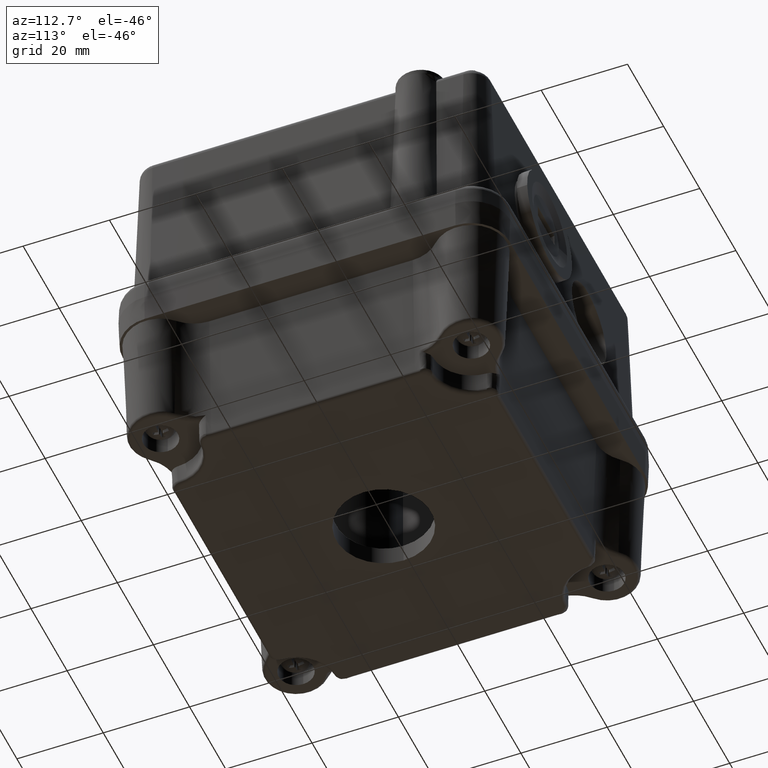
[diagram: clean part render]
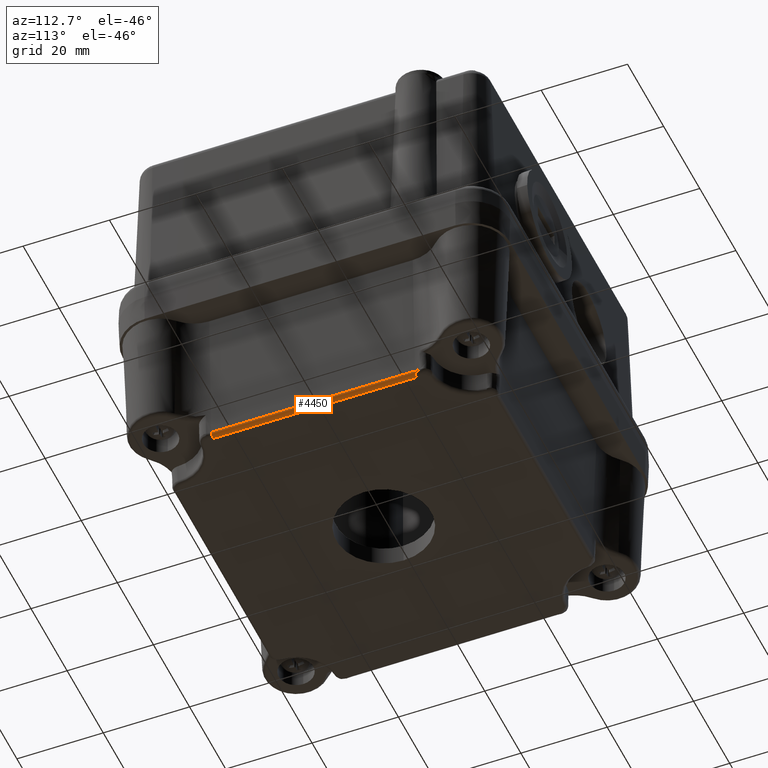
[diagram: same view with one face highlighted and labeled with its STEP entity id]
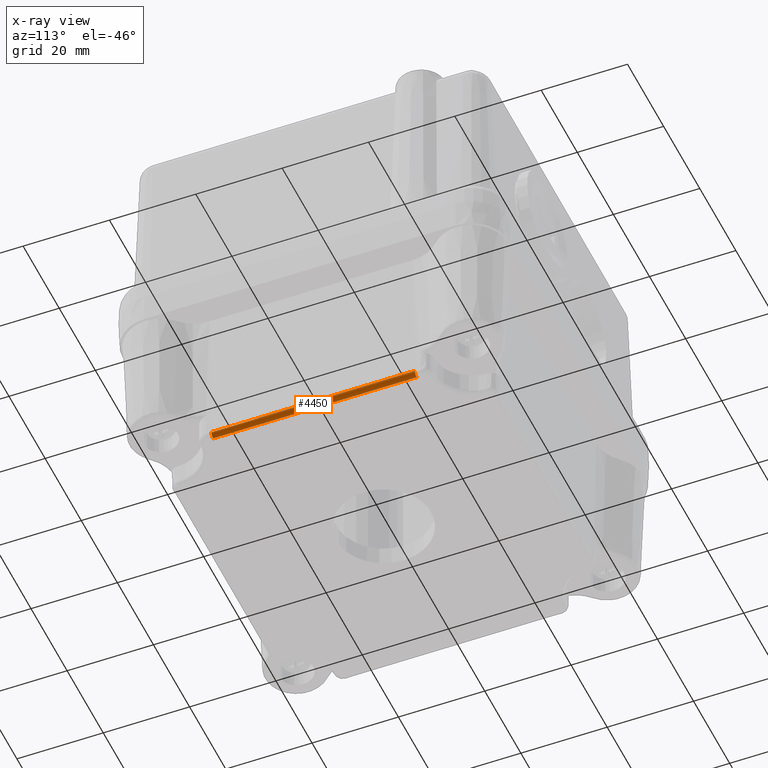
[diagram: x-ray of the same camera — body ghosted, the highlighted face saturated]
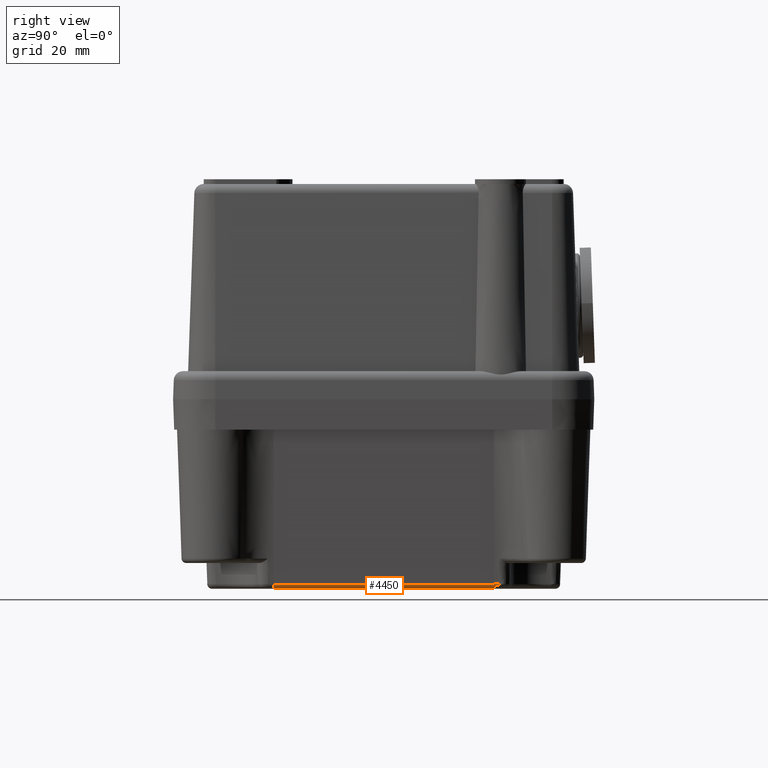
[diagram: same view with one face highlighted and labeled with its STEP entity id]
A machine part, auxiliary view. The second image highlights one B-rep face of the part: STEP entity #4450.
The next image is the same camera in x-ray: the body ghosted, the highlighted face saturated — about 0% of this face is hidden behind the body in this view.
A second angle (right view) of the same face is appended — the face is thin or edge-on in the first view.
In plain terms, the highlighted cylindrical surface (edge-blend (fillet) strip) has radius 1 mm, axis along (-0, -1, -0).
Its self-contained STEP definition (entity closure, byte-faithful):
#4307=CARTESIAN_POINT('',(-1.336132361597504,-7.738608316045141,39.534899496702501));
#4308=VERTEX_POINT('',#4307);
#4411=CARTESIAN_POINT('',(-0.336741534578402,-19.518251598439122,39.500000000000000));
#4412=DIRECTION('',(7.068697E-016,-1.0,0.0));
#4413=DIRECTION('',(-0.694658370458998,0.0,0.719339800338650));
#4414=AXIS2_PLACEMENT_3D('',#4411,#4412,#4413);
#4415=CYLINDRICAL_SURFACE('',#4414,1.000000000000000);
#4416=CARTESIAN_POINT('',(-0.336741534578410,-7.738608316045141,40.500000000000000));
#4417=VERTEX_POINT('',#4416);
#4418=CARTESIAN_POINT('',(-0.336741534578410,-7.738608316045141,39.500000000000000));
#4419=DIRECTION('',(0.0,-1.0,0.0));
#4420=DIRECTION('',(0.0,0.0,1.0));
#4421=AXIS2_PLACEMENT_3D('',#4418,#4419,#4420);
#4422=CIRCLE('',#4421,0.999999999999996);
#4423=EDGE_CURVE('',#4417,#4308,#4422,.T.);
#4424=ORIENTED_EDGE('',*,*,#4423,.T.);
#4425=CARTESIAN_POINT('',(-1.336132361597470,-54.857181445621052,39.534899496702501));
#4426=VERTEX_POINT('',#4425);
#4427=CARTESIAN_POINT('',(-1.336132361597504,-7.738608316045141,39.534899496702501));
#4428=DIRECTION('',(0.0,-1.0,0.0));
#4429=VECTOR('',#4428,47.118573129575907);
#4430=LINE('',#4427,#4429);
#4431=EDGE_CURVE('',#4308,#4426,#4430,.T.);
#4432=ORIENTED_EDGE('',*,*,#4431,.T.);
#4433=CARTESIAN_POINT('',(-0.336741534578377,-54.857181445621052,40.500000000000000));
#4434=VERTEX_POINT('',#4433);
#4435=CARTESIAN_POINT('',(-0.336741534578377,-54.857181445621052,39.500000000000000));
#4436=DIRECTION('',(0.0,1.0,0.0));
#4437=DIRECTION('',(-0.999390827019096,0.0,0.034899496702501));
#4438=AXIS2_PLACEMENT_3D('',#4435,#4436,#4437);
#4439=CIRCLE('',#4438,0.999999999999997);
#4440=EDGE_CURVE('',#4426,#4434,#4439,.T.);
#4441=ORIENTED_EDGE('',*,*,#4440,.T.);
#4442=CARTESIAN_POINT('',(-0.336741534578377,-54.857181445621052,40.500000000000000));
#4443=DIRECTION('',(0.0,1.0,0.0));
#4444=VECTOR('',#4443,47.118573129575907);
#4445=LINE('',#4442,#4444);
#4446=EDGE_CURVE('',#4434,#4417,#4445,.T.);
#4447=ORIENTED_EDGE('',*,*,#4446,.T.);
#4448=EDGE_LOOP('',(#4424,#4432,#4441,#4447));
#4449=FACE_OUTER_BOUND('',#4448,.T.);
#4450=ADVANCED_FACE('',(#4449),#4415,.T.);